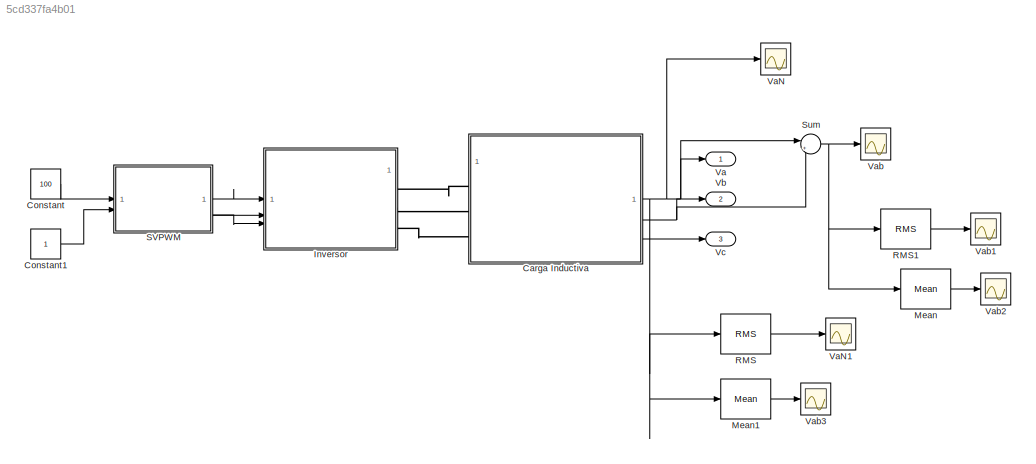
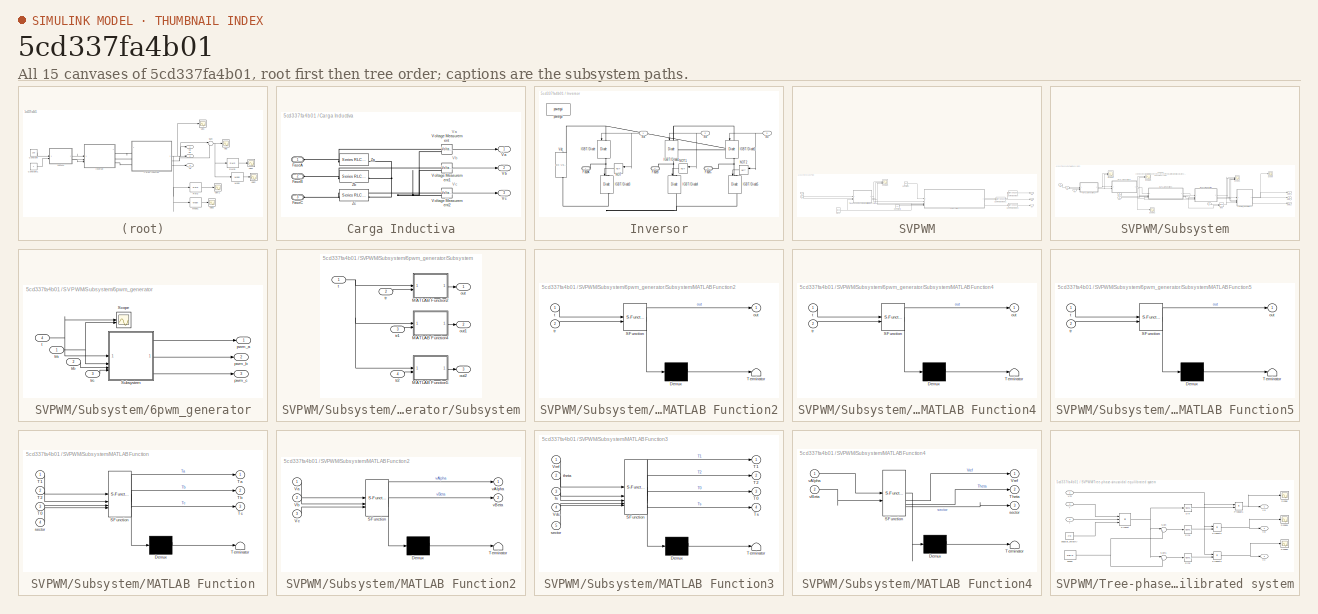
[diagram: thumbnail index - all 15 canvases of the model, root first then tree order]
MODEL slx_5cd337fa4b01
KIND model
CONFIG AbsTol = auto
CONFIG EnableMultiTasking = off
CONFIG FixedStep = auto
CONFIG MaxStep = 0.00001
CONFIG MinStep = auto
CONFIG RelTol = 1e-3
CONFIG SampleTimeConstraint = Unconstrained
CONFIG SolverName = VariableStepAuto
CONFIG StartTime = 0.0
CONFIG StopTime = 3
BLOCK [SubSystem] Carga Inductiva
BLOCK [PMIOPort] Carga Inductiva/FaseA
  Side = Left
BLOCK [PMIOPort] Carga Inductiva/FaseB
  Port = 2
  Side = Left
BLOCK [PMIOPort] Carga Inductiva/FaseC
  Port = 3
  Side = Left
BLOCK [Outport] Carga Inductiva/Va
BLOCK [Outport] Carga Inductiva/Vb
  Port = 2
BLOCK [Outport] Carga Inductiva/Vc
  Port = 3
BLOCK [Reference] Carga Inductiva/Voltage Measurement  REF=spsVoltageMeasurementLib/Voltage Measurement
  LibrarySourceBlock = sps_lib/Sensors and Measurements/Voltage Measurement
  SourceBlock = spsVoltageMeasurementLib/Voltage Measurement
  SourceType = Voltage Measurement
  UserDataPersistent = on
BLOCK [Reference] Carga Inductiva/Voltage Measurement1  REF=spsVoltageMeasurementLib/Voltage Measurement
  LibrarySourceBlock = sps_lib/Sensors and Measurements/Voltage Measurement
  SourceBlock = spsVoltageMeasurementLib/Voltage Measurement
  SourceType = Voltage Measurement
  UserDataPersistent = on
BLOCK [Reference] Carga Inductiva/Voltage Measurement2  REF=spsVoltageMeasurementLib/Voltage Measurement
  LibrarySourceBlock = sps_lib/Sensors and Measurements/Voltage Measurement
  SourceBlock = spsVoltageMeasurementLib/Voltage Measurement
  SourceType = Voltage Measurement
  UserDataPersistent = on
BLOCK [Reference] Carga Inductiva/Za  REF=spsSeriesRLCBranchLib/Series RLC Branch
  LibrarySourceBlock = sps_lib/Passives/Series RLC Branch
  SourceBlock = spsSeriesRLCBranchLib/Series RLC Branch
  SourceType = Series RLC Branch
BLOCK [Reference] Carga Inductiva/Zb  REF=spsSeriesRLCBranchLib/Series RLC Branch
  LibrarySourceBlock = sps_lib/Passives/Series RLC Branch
  SourceBlock = spsSeriesRLCBranchLib/Series RLC Branch
  SourceType = Series RLC Branch
BLOCK [Reference] Carga Inductiva/Zc  REF=spsSeriesRLCBranchLib/Series RLC Branch
  LibrarySourceBlock = sps_lib/Passives/Series RLC Branch
  SourceBlock = spsSeriesRLCBranchLib/Series RLC Branch
  SourceType = Series RLC Branch
BLOCK [Constant] Constant
  Value = 100
BLOCK [Constant] Constant1
BLOCK [SubSystem] Inversor
BLOCK [PMIOPort] Inversor/FaseA
  Side = Right
BLOCK [PMIOPort] Inversor/FaseB
  Port = 2
  Side = Right
BLOCK [PMIOPort] Inversor/FaseC
  Port = 3
  Side = Right
BLOCK [Reference] Inversor/IGBT//Diode  REF=spsIGBTDiodeLib/IGBT//Diode
  LibrarySourceBlock = sps_lib/Power Electronics/IGBT//Diode
  NameLocation = left
  SourceBlock = spsIGBTDiodeLib/IGBT//Diode
  SourceType = IGBT/Diode
BLOCK [Reference] Inversor/IGBT//Diode1  REF=spsIGBTDiodeLib/IGBT//Diode
  LibrarySourceBlock = sps_lib/Power Electronics/IGBT//Diode
  NameLocation = left
  SourceBlock = spsIGBTDiodeLib/IGBT//Diode
  SourceType = IGBT/Diode
BLOCK [Reference] Inversor/IGBT//Diode2  REF=spsIGBTDiodeLib/IGBT//Diode
  LibrarySourceBlock = sps_lib/Power Electronics/IGBT//Diode
  NameLocation = left
  SourceBlock = spsIGBTDiodeLib/IGBT//Diode
  SourceType = IGBT/Diode
BLOCK [Reference] Inversor/IGBT//Diode3  REF=spsIGBTDiodeLib/IGBT//Diode
  LibrarySourceBlock = sps_lib/Power Electronics/IGBT//Diode
  NameLocation = left
  SourceBlock = spsIGBTDiodeLib/IGBT//Diode
  SourceType = IGBT/Diode
BLOCK [Reference] Inversor/IGBT//Diode4  REF=spsIGBTDiodeLib/IGBT//Diode
  LibrarySourceBlock = sps_lib/Power Electronics/IGBT//Diode
  NameLocation = left
  SourceBlock = spsIGBTDiodeLib/IGBT//Diode
  SourceType = IGBT/Diode
BLOCK [Reference] Inversor/IGBT//Diode5  REF=spsIGBTDiodeLib/IGBT//Diode
  LibrarySourceBlock = sps_lib/Power Electronics/IGBT//Diode
  NameLocation = left
  SourceBlock = spsIGBTDiodeLib/IGBT//Diode
  SourceType = IGBT/Diode
BLOCK [Logic] Inversor/NOT
  AllPortsSameDT = off
  IconShape = distinctive
  NameLocation = top
  Operator = NOT
  OutDataTypeStr = boolean
BLOCK [Logic] Inversor/NOT1
  AllPortsSameDT = off
  IconShape = distinctive
  NameLocation = top
  Operator = NOT
  OutDataTypeStr = boolean
BLOCK [Logic] Inversor/NOT2
  AllPortsSameDT = off
  IconShape = distinctive
  NameLocation = top
  Operator = NOT
  OutDataTypeStr = boolean
BLOCK [Inport] Inversor/Sa
BLOCK [Inport] Inversor/Sb
  Port = 2
BLOCK [Inport] Inversor/Sc
  Port = 3
BLOCK [Reference] Inversor/Vdc  REF=spsDCVoltageSourceLib/DC Voltage Source
  LibrarySourceBlock = sps_lib/Sources/DC Voltage Source
  NameLocation = right
  SourceBlock = spsDCVoltageSourceLib/DC Voltage Source
  SourceType = DC Voltage Source
BLOCK [Reference] Inversor/powergui  REF=sps_lib/powergui
  Priority = 1
  SourceBlock = sps_lib/powergui
  SourceType = PSB option menu block
BLOCK [Reference] Mean  REF=spsMeanLib/Mean
  LibrarySourceBlock = sps_lib/Sensors and Measurements/Mean
  SourceBlock = spsMeanLib/Mean
  SourceType = Mean
BLOCK [Reference] Mean1  REF=spsMeanLib/Mean
  LibrarySourceBlock = sps_lib/Sensors and Measurements/Mean
  SourceBlock = spsMeanLib/Mean
  SourceType = Mean
BLOCK [Reference] RMS  REF=spsRMSLib/RMS
  LibrarySourceBlock = sps_lib/Sensors and Measurements/RMS
  SourceBlock = spsRMSLib/RMS
  SourceType = RMS
BLOCK [Reference] RMS1  REF=spsRMSLib/RMS
  LibrarySourceBlock = sps_lib/Sensors and Measurements/RMS
  SourceBlock = spsRMSLib/RMS
  SourceType = RMS
BLOCK [SubSystem] SVPWM
BLOCK [DataTypeConversion] SVPWM/Cast To Boolean
  OutDataTypeStr = boolean
  RndMeth = Floor
  SaturateOnIntegerOverflow = off
BLOCK [DataTypeConversion] SVPWM/Cast To Boolean1
  OutDataTypeStr = boolean
  RndMeth = Floor
  SaturateOnIntegerOverflow = off
BLOCK [DataTypeConversion] SVPWM/Cast To Boolean2
  OutDataTypeStr = boolean
  RndMeth = Floor
  SaturateOnIntegerOverflow = off
BLOCK [Clock] SVPWM/Clock
  DisplayTime = on
BLOCK [Constant] SVPWM/Constant
  Value = 200
BLOCK [Constant] SVPWM/Constant1
  Value = 100
BLOCK [Inport] SVPWM/F
  Port = 2
BLOCK [Outport] SVPWM/Sa
BLOCK [Outport] SVPWM/Sb
  Port = 2
BLOCK [Outport] SVPWM/Sc
  Port = 3
BLOCK [Scope] SVPWM/Scope2
  Floating = off
  NumInputPorts = 3
  ScopeSpecificationString = Simulink.scopes.TimeScopeBlockCfg('CurrentConfiguration', extmgr.ConfigurationSet(extmgr.Configuration('Core','General UI',true),extmgr.Configuration('Core','Source UI',true),extmgr.Configuration('Sources','WiredSimulink',true,'DataLoggingVariableName','ScopeData3'),extmgr.Configuration('Visuals','Time Domain',true,'SerializedDisplays',{struct('MinYLimReal','-243.51978','MaxYLimReal','236.01637','...<+1624ch>
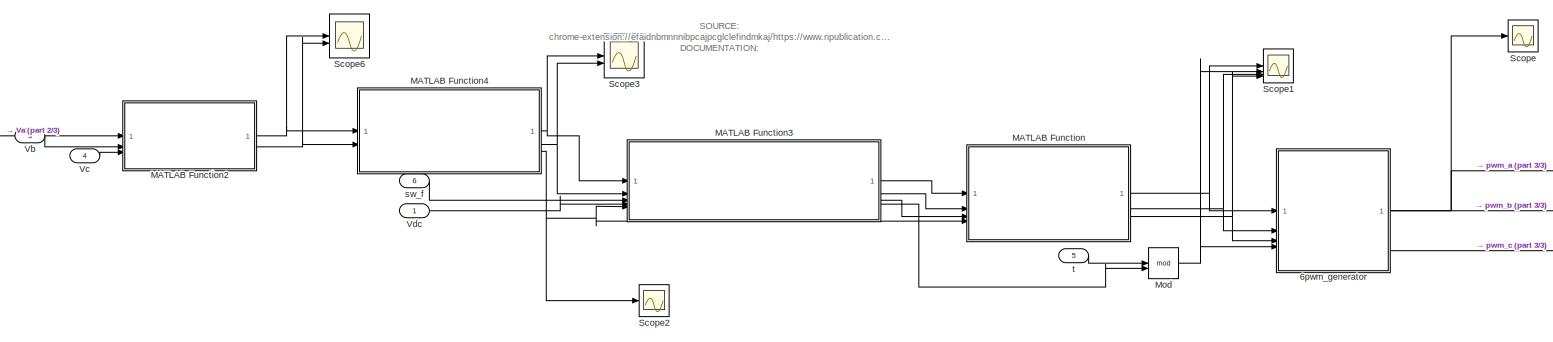
[diagram: SVPWM/Subsystem - part 1/3, most of the canvas]
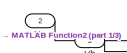
[diagram: SVPWM/Subsystem - part 2/3, middle left region]
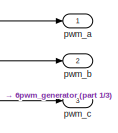
[diagram: SVPWM/Subsystem - part 3/3, middle right region]
BLOCK [SubSystem] SVPWM/Subsystem
BLOCK [SubSystem] SVPWM/Subsystem/6pwm_generator
BLOCK [Scope] SVPWM/Subsystem/6pwm_generator/Scope
  Floating = off
  NumInputPorts = 2
  ScopeSpecificationString = Simulink.scopes.TimeScopeBlockCfg('CurrentConfiguration', extmgr.ConfigurationSet(extmgr.Configuration('Core','General UI',true),extmgr.Configuration('Core','Source UI',true),extmgr.Configuration('Sources','WiredSimulink',true,'DataLoggingVariableName','ScopeData7'),extmgr.Configuration('Visuals','Time Domain',true,'SerializedDisplays',{struct('MinYLimReal','-0.00125','MaxYLimReal','0.01058','YLab...<+1439ch>
BLOCK [SubSystem] SVPWM/Subsystem/6pwm_generator/Subsystem
BLOCK [SubSystem] SVPWM/Subsystem/6pwm_generator/Subsystem/MATLAB Function2
  ErrorFcn = Stateflow.Translate.translate
  LibrarySourceBlock = simulink/User-Defined\nFunctions/MATLAB Function
  PermitHierarchicalResolution = ExplicitOnly
  SFBlockType = MATLAB Function
  TreatAsAtomicUnit = on
BLOCK [Demux] SVPWM/Subsystem/6pwm_generator/Subsystem/MATLAB Function2/ Demux 
  Outputs = 1
BLOCK [S-Function] SVPWM/Subsystem/6pwm_generator/Subsystem/MATLAB Function2/ SFunction 
  EnableBusSupport = on
  FunctionName = sf_sfun
  PortCounts = [2 2]
  SFcnIsStateOwnerBlock = off
  SFunctionDeploymentMode = off
  Tag = Stateflow S-Function 4
BLOCK [Terminator] SVPWM/Subsystem/6pwm_generator/Subsystem/MATLAB Function2/ Terminator 
BLOCK [Outport] SVPWM/Subsystem/6pwm_generator/Subsystem/MATLAB Function2/out
BLOCK [Inport] SVPWM/Subsystem/6pwm_generator/Subsystem/MATLAB Function2/t
BLOCK [Inport] SVPWM/Subsystem/6pwm_generator/Subsystem/MATLAB Function2/tr
  Port = 2
BLOCK [SubSystem] SVPWM/Subsystem/6pwm_generator/Subsystem/MATLAB Function4
  ErrorFcn = Stateflow.Translate.translate
  LibrarySourceBlock = simulink/User-Defined\nFunctions/MATLAB Function
  PermitHierarchicalResolution = ExplicitOnly
  SFBlockType = MATLAB Function
  TreatAsAtomicUnit = on
BLOCK [Demux] SVPWM/Subsystem/6pwm_generator/Subsystem/MATLAB Function4/ Demux 
  Outputs = 1
BLOCK [S-Function] SVPWM/Subsystem/6pwm_generator/Subsystem/MATLAB Function4/ SFunction 
  EnableBusSupport = on
  FunctionName = sf_sfun
  PortCounts = [2 2]
  SFcnIsStateOwnerBlock = off
  SFunctionDeploymentMode = off
  Tag = Stateflow S-Function 5
BLOCK [Terminator] SVPWM/Subsystem/6pwm_generator/Subsystem/MATLAB Function4/ Terminator 
BLOCK [Outport] SVPWM/Subsystem/6pwm_generator/Subsystem/MATLAB Function4/out
BLOCK [Inport] SVPWM/Subsystem/6pwm_generator/Subsystem/MATLAB Function4/t
BLOCK [Inport] SVPWM/Subsystem/6pwm_generator/Subsystem/MATLAB Function4/tr
  Port = 2
BLOCK [SubSystem] SVPWM/Subsystem/6pwm_generator/Subsystem/MATLAB Function5
  ErrorFcn = Stateflow.Translate.translate
  LibrarySourceBlock = simulink/User-Defined\nFunctions/MATLAB Function
  PermitHierarchicalResolution = ExplicitOnly
  SFBlockType = MATLAB Function
  TreatAsAtomicUnit = on
BLOCK [Demux] SVPWM/Subsystem/6pwm_generator/Subsystem/MATLAB Function5/ Demux 
  Outputs = 1
BLOCK [S-Function] SVPWM/Subsystem/6pwm_generator/Subsystem/MATLAB Function5/ SFunction 
  EnableBusSupport = on
  FunctionName = sf_sfun
  PortCounts = [2 2]
  SFcnIsStateOwnerBlock = off
  SFunctionDeploymentMode = off
  Tag = Stateflow S-Function 6
BLOCK [Terminator] SVPWM/Subsystem/6pwm_generator/Subsystem/MATLAB Function5/ Terminator 
BLOCK [Outport] SVPWM/Subsystem/6pwm_generator/Subsystem/MATLAB Function5/out
BLOCK [Inport] SVPWM/Subsystem/6pwm_generator/Subsystem/MATLAB Function5/t
BLOCK [Inport] SVPWM/Subsystem/6pwm_generator/Subsystem/MATLAB Function5/tr
  Port = 2
BLOCK [Outport] SVPWM/Subsystem/6pwm_generator/Subsystem/out
BLOCK [Outport] SVPWM/Subsystem/6pwm_generator/Subsystem/out1
  Port = 2
BLOCK [Outport] SVPWM/Subsystem/6pwm_generator/Subsystem/out2
  Port = 3
BLOCK [Inport] SVPWM/Subsystem/6pwm_generator/Subsystem/t
BLOCK [Inport] SVPWM/Subsystem/6pwm_generator/Subsystem/tr
  Port = 2
BLOCK [Inport] SVPWM/Subsystem/6pwm_generator/Subsystem/tr1
  Port = 3
BLOCK [Inport] SVPWM/Subsystem/6pwm_generator/Subsystem/tr2
  Port = 4
BLOCK [Outport] SVPWM/Subsystem/6pwm_generator/pwm_a
BLOCK [Outport] SVPWM/Subsystem/6pwm_generator/pwm_b
  Port = 2
BLOCK [Outport] SVPWM/Subsystem/6pwm_generator/pwm_c
  Port = 3
BLOCK [Inport] SVPWM/Subsystem/6pwm_generator/t
  Port = 4
BLOCK [Inport] SVPWM/Subsystem/6pwm_generator/tra
BLOCK [Inport] SVPWM/Subsystem/6pwm_generator/trb
  Port = 2
BLOCK [Inport] SVPWM/Subsystem/6pwm_generator/trc
  Port = 3
BLOCK [SubSystem] SVPWM/Subsystem/MATLAB Function
  ErrorFcn = Stateflow.Translate.translate
  LibrarySourceBlock = simulink/User-Defined\nFunctions/MATLAB Function
  PermitHierarchicalResolution = ExplicitOnly
  SFBlockType = MATLAB Function
  TreatAsAtomicUnit = on
BLOCK [Demux] SVPWM/Subsystem/MATLAB Function/ Demux 
  Outputs = 1
BLOCK [S-Function] SVPWM/Subsystem/MATLAB Function/ SFunction 
  EnableBusSupport = on
  FunctionName = sf_sfun
  PortCounts = [4 4]
  SFcnIsStateOwnerBlock = off
  SFunctionDeploymentMode = off
  Tag = Stateflow S-Function 1
BLOCK [Terminator] SVPWM/Subsystem/MATLAB Function/ Terminator 
BLOCK [Inport] SVPWM/Subsystem/MATLAB Function/T0
  Port = 3
BLOCK [Inport] SVPWM/Subsystem/MATLAB Function/T1
BLOCK [Inport] SVPWM/Subsystem/MATLAB Function/T2
  Port = 2
BLOCK [Outport] SVPWM/Subsystem/MATLAB Function/Ta
BLOCK [Outport] SVPWM/Subsystem/MATLAB Function/Tb
  Port = 2
BLOCK [Outport] SVPWM/Subsystem/MATLAB Function/Tc
  Port = 3
BLOCK [Inport] SVPWM/Subsystem/MATLAB Function/sector
  Port = 4
BLOCK [SubSystem] SVPWM/Subsystem/MATLAB Function2
  ErrorFcn = Stateflow.Translate.translate
  LibrarySourceBlock = simulink/User-Defined\nFunctions/MATLAB Function
  PermitHierarchicalResolution = ExplicitOnly
  SFBlockType = MATLAB Function
  TreatAsAtomicUnit = on
BLOCK [Demux] SVPWM/Subsystem/MATLAB Function2/ Demux 
  Outputs = 1
BLOCK [S-Function] SVPWM/Subsystem/MATLAB Function2/ SFunction 
  EnableBusSupport = on
  FunctionName = sf_sfun
  PortCounts = [3 3]
  SFcnIsStateOwnerBlock = off
  SFunctionDeploymentMode = off
  Tag = Stateflow S-Function 7
BLOCK [Terminator] SVPWM/Subsystem/MATLAB Function2/ Terminator 
BLOCK [Inport] SVPWM/Subsystem/MATLAB Function2/Va
BLOCK [Inport] SVPWM/Subsystem/MATLAB Function2/Vb
  Port = 2
BLOCK [Inport] SVPWM/Subsystem/MATLAB Function2/Vc
  Port = 3
BLOCK [Outport] SVPWM/Subsystem/MATLAB Function2/vAlpha
BLOCK [Outport] SVPWM/Subsystem/MATLAB Function2/vBeta
  Port = 2
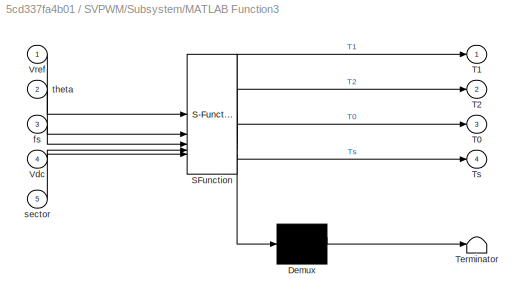
BLOCK [SubSystem] SVPWM/Subsystem/MATLAB Function3
  ErrorFcn = Stateflow.Translate.translate
  LibrarySourceBlock = simulink/User-Defined\nFunctions/MATLAB Function
  PermitHierarchicalResolution = ExplicitOnly
  SFBlockType = MATLAB Function
  TreatAsAtomicUnit = on
BLOCK [Demux] SVPWM/Subsystem/MATLAB Function3/ Demux 
  Outputs = 1
BLOCK [S-Function] SVPWM/Subsystem/MATLAB Function3/ SFunction 
  EnableBusSupport = on
  FunctionName = sf_sfun
  PortCounts = [5 5]
  SFcnIsStateOwnerBlock = off
  SFunctionDeploymentMode = off
  Tag = Stateflow S-Function 3
BLOCK [Terminator] SVPWM/Subsystem/MATLAB Function3/ Terminator 
BLOCK [Outport] SVPWM/Subsystem/MATLAB Function3/T0
  Port = 3
BLOCK [Outport] SVPWM/Subsystem/MATLAB Function3/T1
BLOCK [Outport] SVPWM/Subsystem/MATLAB Function3/T2
  Port = 2
BLOCK [Outport] SVPWM/Subsystem/MATLAB Function3/Ts
  Port = 4
BLOCK [Inport] SVPWM/Subsystem/MATLAB Function3/Vdc
  Port = 4
BLOCK [Inport] SVPWM/Subsystem/MATLAB Function3/Vref
BLOCK [Inport] SVPWM/Subsystem/MATLAB Function3/fs
  Port = 3
BLOCK [Inport] SVPWM/Subsystem/MATLAB Function3/sector
  Port = 5
BLOCK [Inport] SVPWM/Subsystem/MATLAB Function3/theta
  Port = 2
BLOCK [SubSystem] SVPWM/Subsystem/MATLAB Function4
  ErrorFcn = Stateflow.Translate.translate
  LibrarySourceBlock = simulink/User-Defined\nFunctions/MATLAB Function
  PermitHierarchicalResolution = ExplicitOnly
  SFBlockType = MATLAB Function
  TreatAsAtomicUnit = on
BLOCK [Demux] SVPWM/Subsystem/MATLAB Function4/ Demux 
  Outputs = 1
BLOCK [S-Function] SVPWM/Subsystem/MATLAB Function4/ SFunction 
  EnableBusSupport = on
  FunctionName = sf_sfun
  PortCounts = [2 4]
  SFcnIsStateOwnerBlock = off
  SFunctionDeploymentMode = off
  Tag = Stateflow S-Function 8
BLOCK [Terminator] SVPWM/Subsystem/MATLAB Function4/ Terminator 
BLOCK [Outport] SVPWM/Subsystem/MATLAB Function4/Theta
  Port = 2
BLOCK [Outport] SVPWM/Subsystem/MATLAB Function4/Vref
BLOCK [Outport] SVPWM/Subsystem/MATLAB Function4/sector
  Port = 3
BLOCK [Inport] SVPWM/Subsystem/MATLAB Function4/vAlpha
BLOCK [Inport] SVPWM/Subsystem/MATLAB Function4/vBeta
  Port = 2
BLOCK [Math] SVPWM/Subsystem/Mod
  Operator = mod
BLOCK [Scope] SVPWM/Subsystem/Scope
  Floating = off
  NumInputPorts = 1
  ScopeSpecificationString = Simulink.scopes.TimeScopeBlockCfg('CurrentConfiguration', extmgr.ConfigurationSet(extmgr.Configuration('Core','General UI',true),extmgr.Configuration('Core','Source UI',true),extmgr.Configuration('Sources','WiredSimulink',true,'DataLoggingVariableName','ScopeData1'),extmgr.Configuration('Visuals','Time Domain',true,'SerializedDisplays',{struct('MinYLimReal','-0.125','MaxYLimReal','1.125','YLabelRe...<+1441ch>
BLOCK [Scope] SVPWM/Subsystem/Scope1
  Floating = off
  NumInputPorts = 4
  ScopeSpecificationString = Simulink.scopes.TimeScopeBlockCfg('CurrentConfiguration', extmgr.ConfigurationSet(extmgr.Configuration('Core','General UI',true),extmgr.Configuration('Core','Source UI',true),extmgr.Configuration('Sources','WiredSimulink',true,'DataLoggingVariableName','ScopeData5'),extmgr.Configuration('Visuals','Time Domain',true,'SerializedDisplays',{struct('MinYLimReal','-0.00125','MaxYLimReal','0.0103','YLabe...<+1583ch>
BLOCK [Scope] SVPWM/Subsystem/Scope2
  Floating = off
  NumInputPorts = 1
  ScopeSpecificationString = Simulink.scopes.TimeScopeBlockCfg('CurrentConfiguration', extmgr.ConfigurationSet(extmgr.Configuration('Core','General UI',true),extmgr.Configuration('Core','Source UI',true),extmgr.Configuration('Sources','WiredSimulink',true,'DataLoggingVariableName','ScopeData6'),extmgr.Configuration('Visuals','Time Domain',true,'SerializedDisplays',{struct('MinYLimReal','0.375','MaxYLimReal','6.625','YLabelRea...<+1393ch>
BLOCK [Scope] SVPWM/Subsystem/Scope3
  Floating = off
  NumInputPorts = 2
  ScopeSpecificationString = Simulink.scopes.TimeScopeBlockCfg('CurrentConfiguration', extmgr.ConfigurationSet(extmgr.Configuration('Core','General UI',true),extmgr.Configuration('Core','Source UI',true),extmgr.Configuration('Sources','WiredSimulink',true,'DataLoggingVariableName','ScopeData1'),extmgr.Configuration('Visuals','Time Domain',true,'SerializedDisplays',{struct('MinYLimReal','-14.43787','MaxYLimReal','8.41888','YLa...<+1472ch>
BLOCK [Scope] SVPWM/Subsystem/Scope6
  Floating = off
  NumInputPorts = 2
  ScopeSpecificationString = Simulink.scopes.TimeScopeBlockCfg('CurrentConfiguration', extmgr.ConfigurationSet(extmgr.Configuration('Core','General UI',true),extmgr.Configuration('Core','Source UI',true),extmgr.Configuration('Sources','WiredSimulink',true,'DataLoggingVariableName','ScopeData6'),extmgr.Configuration('Visuals','Time Domain',true,'SerializedDisplays',{struct('MinYLimReal','-125.00000','MaxYLimReal','125.00000','...<+1421ch>
BLOCK [Inport] SVPWM/Subsystem/Va
  Port = 2
BLOCK [Inport] SVPWM/Subsystem/Vb
  Port = 3
BLOCK [Inport] SVPWM/Subsystem/Vc
  Port = 4
BLOCK [Inport] SVPWM/Subsystem/Vdc
BLOCK [Outport] SVPWM/Subsystem/pwm_a
BLOCK [Outport] SVPWM/Subsystem/pwm_b
  Port = 2
BLOCK [Outport] SVPWM/Subsystem/pwm_c
  Port = 3
BLOCK [Inport] SVPWM/Subsystem/sw_f
  Port = 6
BLOCK [Inport] SVPWM/Subsystem/t
  Port = 5
BLOCK [SubSystem] SVPWM/Tree-phase-sinusoidal equilibrated system
BLOCK [Product] SVPWM/Tree-phase-sinusoidal equilibrated system/Product
  Inputs = 3
BLOCK [Product] SVPWM/Tree-phase-sinusoidal equilibrated system/Product1
BLOCK [Product] SVPWM/Tree-phase-sinusoidal equilibrated system/Product2
BLOCK [Product] SVPWM/Tree-phase-sinusoidal equilibrated system/Product3
BLOCK [Scope] SVPWM/Tree-phase-sinusoidal equilibrated system/Scope
  Floating = off
  NumInputPorts = 1
  ScopeSpecificationString = Simulink.scopes.TimeScopeBlockCfg('CurrentConfiguration', extmgr.ConfigurationSet(extmgr.Configuration('Core','General UI',true),extmgr.Configuration('Core','Source UI',true),extmgr.Configuration('Sources','WiredSimulink',true,'DataLoggingVariableName','ScopeData3'),extmgr.Configuration('Visuals','Time Domain',true,'SerializedDisplays',{struct('MinYLimReal','-250.00000','MaxYLimReal','250.00000','...<+1400ch>
BLOCK [Scope] SVPWM/Tree-phase-sinusoidal equilibrated system/Scope1
  Floating = off
  NumInputPorts = 1
  ScopeSpecificationString = Simulink.scopes.TimeScopeBlockCfg('CurrentConfiguration', extmgr.ConfigurationSet(extmgr.Configuration('Core','General UI',true),extmgr.Configuration('Core','Source UI',true),extmgr.Configuration('Sources','WiredSimulink',true),extmgr.Configuration('Visuals','Time Domain',true),extmgr.Configuration('Tools','Plot Navigation',true),extmgr.Configuration('Tools','Measurements',true)),'Version','2021b'...<+1ch>
BLOCK [Scope] SVPWM/Tree-phase-sinusoidal equilibrated system/Scope2
  Floating = off
  NumInputPorts = 1
  ScopeSpecificationString = Simulink.scopes.TimeScopeBlockCfg('CurrentConfiguration', extmgr.ConfigurationSet(extmgr.Configuration('Core','General UI',true),extmgr.Configuration('Core','Source UI',true),extmgr.Configuration('Sources','WiredSimulink',true,'DataLoggingVariableName','ScopeData1'),extmgr.Configuration('Visuals','Time Domain',true),extmgr.Configuration('Tools','Plot Navigation',true),extmgr.Configuration('Tools',...<+40ch>
BLOCK [Trigonometry] SVPWM/Tree-phase-sinusoidal equilibrated system/Sin
BLOCK [Trigonometry] SVPWM/Tree-phase-sinusoidal equilibrated system/Sin1
BLOCK [Trigonometry] SVPWM/Tree-phase-sinusoidal equilibrated system/Sin2
BLOCK [Sum] SVPWM/Tree-phase-sinusoidal equilibrated system/Sum
  Inputs = |++
BLOCK [Sum] SVPWM/Tree-phase-sinusoidal equilibrated system/Sum1
  Inputs = |+-
BLOCK [Outport] SVPWM/Tree-phase-sinusoidal equilibrated system/Va
BLOCK [Outport] SVPWM/Tree-phase-sinusoidal equilibrated system/Vb
  Port = 2
BLOCK [Outport] SVPWM/Tree-phase-sinusoidal equilibrated system/Vc
  Port = 3
BLOCK [Inport] SVPWM/Tree-phase-sinusoidal equilibrated system/Vm
BLOCK [Constant] SVPWM/Tree-phase-sinusoidal equilibrated system/angular_velocity
  Value = 2*pi
BLOCK [Inport] SVPWM/Tree-phase-sinusoidal equilibrated system/f
  Port = 2
BLOCK [Constant] SVPWM/Tree-phase-sinusoidal equilibrated system/phase
  Value = 2*pi/3
BLOCK [Inport] SVPWM/Tree-phase-sinusoidal equilibrated system/t
  Port = 3
BLOCK [Inport] SVPWM/V
BLOCK [Sum] Sum
  Inputs = |+-
BLOCK [Outport] Va
BLOCK [Scope] VaN
  Floating = off
  NumInputPorts = 1
  ScopeSpecificationString = Simulink.scopes.TimeScopeBlockCfg('CurrentConfiguration', extmgr.ConfigurationSet(extmgr.Configuration('Core','General UI',true),extmgr.Configuration('Core','Source UI',true),extmgr.Configuration('Sources','WiredSimulink',true,'DataLoggingVariableName','ScopeData1'),extmgr.Configuration('Visuals','Time Domain',true,'SerializedDisplays',{struct('MinYLimReal','-168.19324','MaxYLimReal','166.84626','...<+1421ch>
BLOCK [Scope] VaN1
  Floating = off
  NumInputPorts = 1
  ScopeSpecificationString = Simulink.scopes.TimeScopeBlockCfg('CurrentConfiguration', extmgr.ConfigurationSet(extmgr.Configuration('Core','General UI',true),extmgr.Configuration('Core','Source UI',true),extmgr.Configuration('Sources','WiredSimulink',true,'DataLoggingVariableName','ScopeData3'),extmgr.Configuration('Visuals','Time Domain',true,'SerializedDisplays',{struct('MinYLimReal','46.7131','MaxYLimReal','132.05624','YLa...<+1399ch>
BLOCK [Scope] Vab
  Floating = off
  NumInputPorts = 1
  ScopeSpecificationString = Simulink.scopes.TimeScopeBlockCfg('CurrentConfiguration', extmgr.ConfigurationSet(extmgr.Configuration('Core','General UI',true),extmgr.Configuration('Core','Source UI',true),extmgr.Configuration('Sources','WiredSimulink',true,'DataLoggingVariableName','ScopeData2'),extmgr.Configuration('Visuals','Time Domain',true,'SerializedDisplays',{struct('MinYLimReal','-252.74998','MaxYLimReal','250.71082','...<+1434ch>
BLOCK [Scope] Vab1
  Floating = off
  NumInputPorts = 1
  ScopeSpecificationString = Simulink.scopes.TimeScopeBlockCfg('CurrentConfiguration', extmgr.ConfigurationSet(extmgr.Configuration('Core','General UI',true),extmgr.Configuration('Core','Source UI',true),extmgr.Configuration('Sources','WiredSimulink',true,'DataLoggingVariableName','ScopeData4'),extmgr.Configuration('Visuals','Time Domain',true,'SerializedDisplays',{struct('MinYLimReal','-5.85751','MaxYLimReal','214.90866','YL...<+1429ch>
BLOCK [Scope] Vab2
  Floating = off
  NumInputPorts = 1
  ScopeSpecificationString = Simulink.scopes.TimeScopeBlockCfg('CurrentConfiguration', extmgr.ConfigurationSet(extmgr.Configuration('Core','General UI',true),extmgr.Configuration('Core','Source UI',true),extmgr.Configuration('Sources','WiredSimulink',true,'DataLoggingVariableName','ScopeData5'),extmgr.Configuration('Visuals','Time Domain',true,'SerializedDisplays',{struct('MinYLimReal','-230.99481','MaxYLimReal','228.90877','...<+1435ch>
BLOCK [Scope] Vab3
  Floating = off
  NumInputPorts = 1
  ScopeSpecificationString = Simulink.scopes.TimeScopeBlockCfg('CurrentConfiguration', extmgr.ConfigurationSet(extmgr.Configuration('Core','General UI',true),extmgr.Configuration('Core','Source UI',true),extmgr.Configuration('Sources','WiredSimulink',true,'DataLoggingVariableName','ScopeData6'),extmgr.Configuration('Visuals','Time Domain',true,'SerializedDisplays',{struct('MinYLimReal','-142.58463','MaxYLimReal','141.38819','...<+1436ch>
BLOCK [Outport] Vb
  Port = 2
BLOCK [Outport] Vc
  Port = 3
ANNOTATION Carga Inductiva: Va
ANNOTATION Carga Inductiva: Vb
ANNOTATION Carga Inductiva: Vc
ANNOTATION SVPWM/Subsystem: SOURCE: chrome-extension://efaidnbmnnnibpcajpcglclefindmkaj/https://www.ripublication.com/ijaer18/ijaerv13n1_78.pdf DOCUMENTATION:
LINE Carga Inductiva/Voltage Measurement1:1 -> Carga Inductiva/Vb:1
LINE Carga Inductiva/Voltage Measurement2:1 -> Carga Inductiva/Vc:1
LINE Carga Inductiva/Voltage Measurement:1 -> Carga Inductiva/Va:1
NET Carga Inductiva:1 -> Mean1:1, RMS:1, Sum:1, Va:1, VaN:1
NET Carga Inductiva:2 -> Sum:2, Vb:1
LINE Carga Inductiva:3 -> Vc:1
LINE Constant1:1 -> SVPWM:2
LINE Constant:1 -> SVPWM:1
LINE Inversor/NOT1:1 -> Inversor/IGBT//Diode4:1
LINE Inversor/NOT2:1 -> Inversor/IGBT//Diode5:1
LINE Inversor/NOT:1 -> Inversor/IGBT//Diode3:1
NET Inversor/Sa:1 -> Inversor/IGBT//Diode:1, Inversor/NOT:1
NET Inversor/Sb:1 -> Inversor/IGBT//Diode1:1, Inversor/NOT1:1
NET Inversor/Sc:1 -> Inversor/IGBT//Diode2:1, Inversor/NOT2:1
LINE Mean1:1 -> Vab3:1
LINE Mean:1 -> Vab2:1
LINE RMS1:1 -> Vab1:1
LINE RMS:1 -> VaN1:1
LINE SVPWM/Cast To Boolean1:1 -> SVPWM/Sb:1
LINE SVPWM/Cast To Boolean2:1 -> SVPWM/Sc:1
LINE SVPWM/Cast To Boolean:1 -> SVPWM/Sa:1
NET SVPWM/Clock:1 -> SVPWM/Subsystem:5, SVPWM/Tree-phase-sinusoidal equilibrated system:3
LINE SVPWM/Constant1:1 -> SVPWM/Subsystem:6
LINE SVPWM/Constant:1 -> SVPWM/Subsystem:1
LINE SVPWM/F:1 -> SVPWM/Tree-phase-sinusoidal equilibrated system:2
LINE SVPWM/Subsystem/6pwm_generator/Subsystem/MATLAB Function2:1 -> SVPWM/Subsystem/6pwm_generator/Subsystem/out:1
LINE SVPWM/Subsystem/6pwm_generator/Subsystem/MATLAB Function4:1 -> SVPWM/Subsystem/6pwm_generator/Subsystem/out1:1
LINE SVPWM/Subsystem/6pwm_generator/Subsystem/MATLAB Function5:1 -> SVPWM/Subsystem/6pwm_generator/Subsystem/out2:1
NET SVPWM/Subsystem/6pwm_generator/Subsystem/t:1 -> SVPWM/Subsystem/6pwm_generator/Subsystem/MATLAB Function2:1, SVPWM/Subsystem/6pwm_generator/Subsystem/MATLAB Function4:1, SVPWM/Subsystem/6pwm_generator/Subsystem/MATLAB Function5:1
LINE SVPWM/Subsystem/6pwm_generator/Subsystem/tr1:1 -> SVPWM/Subsystem/6pwm_generator/Subsystem/MATLAB Function4:2
LINE SVPWM/Subsystem/6pwm_generator/Subsystem/tr2:1 -> SVPWM/Subsystem/6pwm_generator/Subsystem/MATLAB Function5:2
LINE SVPWM/Subsystem/6pwm_generator/Subsystem/tr:1 -> SVPWM/Subsystem/6pwm_generator/Subsystem/MATLAB Function2:2
LINE SVPWM/Subsystem/6pwm_generator/Subsystem:1 -> SVPWM/Subsystem/6pwm_generator/pwm_a:1
LINE SVPWM/Subsystem/6pwm_generator/Subsystem:2 -> SVPWM/Subsystem/6pwm_generator/pwm_b:1
LINE SVPWM/Subsystem/6pwm_generator/Subsystem:3 -> SVPWM/Subsystem/6pwm_generator/pwm_c:1
NET SVPWM/Subsystem/6pwm_generator/t:1 -> SVPWM/Subsystem/6pwm_generator/Scope:1, SVPWM/Subsystem/6pwm_generator/Subsystem:1
NET SVPWM/Subsystem/6pwm_generator/tra:1 -> SVPWM/Subsystem/6pwm_generator/Scope:2, SVPWM/Subsystem/6pwm_generator/Subsystem:2
LINE SVPWM/Subsystem/6pwm_generator/trb:1 -> SVPWM/Subsystem/6pwm_generator/Subsystem:3
LINE SVPWM/Subsystem/6pwm_generator/trc:1 -> SVPWM/Subsystem/6pwm_generator/Subsystem:4
NET SVPWM/Subsystem/6pwm_generator:1 -> SVPWM/Subsystem/Scope:1, SVPWM/Subsystem/pwm_a:1
LINE SVPWM/Subsystem/6pwm_generator:2 -> SVPWM/Subsystem/pwm_b:1
LINE SVPWM/Subsystem/6pwm_generator:3 -> SVPWM/Subsystem/pwm_c:1
NET SVPWM/Subsystem/MATLAB Function2:1 -> SVPWM/Subsystem/MATLAB Function4:1, SVPWM/Subsystem/Scope6:1
NET SVPWM/Subsystem/MATLAB Function2:2 -> SVPWM/Subsystem/MATLAB Function4:2, SVPWM/Subsystem/Scope6:2
LINE SVPWM/Subsystem/MATLAB Function3:1 -> SVPWM/Subsystem/MATLAB Function:1
LINE SVPWM/Subsystem/MATLAB Function3:2 -> SVPWM/Subsystem/MATLAB Function:2
LINE SVPWM/Subsystem/MATLAB Function3:3 -> SVPWM/Subsystem/MATLAB Function:3
LINE SVPWM/Subsystem/MATLAB Function3:4 -> SVPWM/Subsystem/Mod:2
NET SVPWM/Subsystem/MATLAB Function4:1 -> SVPWM/Subsystem/MATLAB Function3:1, SVPWM/Subsystem/Scope3:1
NET SVPWM/Subsystem/MATLAB Function4:2 -> SVPWM/Subsystem/MATLAB Function3:2, SVPWM/Subsystem/Scope3:2
NET SVPWM/Subsystem/MATLAB Function4:3 -> SVPWM/Subsystem/MATLAB Function3:5, SVPWM/Subsystem/MATLAB Function:4, SVPWM/Subsystem/Scope2:1
NET SVPWM/Subsystem/MATLAB Function:1 -> SVPWM/Subsystem/6pwm_generator:1, SVPWM/Subsystem/Scope1:1
NET SVPWM/Subsystem/MATLAB Function:2 -> SVPWM/Subsystem/6pwm_generator:2, SVPWM/Subsystem/Scope1:3
NET SVPWM/Subsystem/MATLAB Function:3 -> SVPWM/Subsystem/6pwm_generator:3, SVPWM/Subsystem/Scope1:4
NET SVPWM/Subsystem/Mod:1 -> SVPWM/Subsystem/6pwm_generator:4, SVPWM/Subsystem/Scope1:2
LINE SVPWM/Subsystem/Va:1 -> SVPWM/Subsystem/MATLAB Function2:1
LINE SVPWM/Subsystem/Vb:1 -> SVPWM/Subsystem/MATLAB Function2:2
LINE SVPWM/Subsystem/Vc:1 -> SVPWM/Subsystem/MATLAB Function2:3
LINE SVPWM/Subsystem/Vdc:1 -> SVPWM/Subsystem/MATLAB Function3:4
LINE SVPWM/Subsystem/sw_f:1 -> SVPWM/Subsystem/MATLAB Function3:3
LINE SVPWM/Subsystem/t:1 -> SVPWM/Subsystem/Mod:1
LINE SVPWM/Subsystem:1 -> SVPWM/Cast To Boolean:1
LINE SVPWM/Subsystem:2 -> SVPWM/Cast To Boolean1:1
LINE SVPWM/Subsystem:3 -> SVPWM/Cast To Boolean2:1
NET SVPWM/Tree-phase-sinusoidal equilibrated system/Product1:1 -> SVPWM/Tree-phase-sinusoidal equilibrated system/Scope:1, SVPWM/Tree-phase-sinusoidal equilibrated system/Va:1
NET SVPWM/Tree-phase-sinusoidal equilibrated system/Product2:1 -> SVPWM/Tree-phase-sinusoidal equilibrated system/Scope1:1, SVPWM/Tree-phase-sinusoidal equilibrated system/Vb:1
NET SVPWM/Tree-phase-sinusoidal equilibrated system/Product3:1 -> SVPWM/Tree-phase-sinusoidal equilibrated system/Scope2:1, SVPWM/Tree-phase-sinusoidal equilibrated system/Vc:1
NET SVPWM/Tree-phase-sinusoidal equilibrated system/Product:1 -> SVPWM/Tree-phase-sinusoidal equilibrated system/Sin:1, SVPWM/Tree-phase-sinusoidal equilibrated system/Sum1:1, SVPWM/Tree-phase-sinusoidal equilibrated system/Sum:1
LINE SVPWM/Tree-phase-sinusoidal equilibrated system/Sin1:1 -> SVPWM/Tree-phase-sinusoidal equilibrated system/Product2:2
LINE SVPWM/Tree-phase-sinusoidal equilibrated system/Sin2:1 -> SVPWM/Tree-phase-sinusoidal equilibrated system/Product3:2
LINE SVPWM/Tree-phase-sinusoidal equilibrated system/Sin:1 -> SVPWM/Tree-phase-sinusoidal equilibrated system/Product1:2
LINE SVPWM/Tree-phase-sinusoidal equilibrated system/Sum1:1 -> SVPWM/Tree-phase-sinusoidal equilibrated system/Sin2:1
LINE SVPWM/Tree-phase-sinusoidal equilibrated system/Sum:1 -> SVPWM/Tree-phase-sinusoidal equilibrated system/Sin1:1
NET SVPWM/Tree-phase-sinusoidal equilibrated system/Vm:1 -> SVPWM/Tree-phase-sinusoidal equilibrated system/Product1:1, SVPWM/Tree-phase-sinusoidal equilibrated system/Product2:1, SVPWM/Tree-phase-sinusoidal equilibrated system/Product3:1
LINE SVPWM/Tree-phase-sinusoidal equilibrated system/angular_velocity:1 -> SVPWM/Tree-phase-sinusoidal equilibrated system/Product:3
LINE SVPWM/Tree-phase-sinusoidal equilibrated system/f:1 -> SVPWM/Tree-phase-sinusoidal equilibrated system/Product:1
NET SVPWM/Tree-phase-sinusoidal equilibrated system/phase:1 -> SVPWM/Tree-phase-sinusoidal equilibrated system/Sum1:2, SVPWM/Tree-phase-sinusoidal equilibrated system/Sum:2
LINE SVPWM/Tree-phase-sinusoidal equilibrated system/t:1 -> SVPWM/Tree-phase-sinusoidal equilibrated system/Product:2
NET SVPWM/Tree-phase-sinusoidal equilibrated system:1 -> SVPWM/Scope2:1, SVPWM/Subsystem:2
NET SVPWM/Tree-phase-sinusoidal equilibrated system:2 -> SVPWM/Scope2:2, SVPWM/Subsystem:3
NET SVPWM/Tree-phase-sinusoidal equilibrated system:3 -> SVPWM/Scope2:3, SVPWM/Subsystem:4
LINE SVPWM/V:1 -> SVPWM/Tree-phase-sinusoidal equilibrated system:1
LINE SVPWM:1 -> Inversor:1
LINE SVPWM:2 -> Inversor:2
LINE SVPWM:3 -> Inversor:3
NET Sum:1 -> Mean:1, RMS1:1, Vab:1
PNET net1: Carga Inductiva/FaseA:RConn1 -- Carga Inductiva/Voltage Measurement:LConn1 -- Carga Inductiva/Za:LConn1
PNET net2: Carga Inductiva/FaseB:RConn1 -- Carga Inductiva/Voltage Measurement1:LConn1 -- Carga Inductiva/Zb:LConn1
PNET net3: Carga Inductiva/FaseC:RConn1 -- Carga Inductiva/Voltage Measurement2:LConn1 -- Carga Inductiva/Zc:LConn1
PNET net4: Carga Inductiva/Voltage Measurement1:LConn2 -- Carga Inductiva/Voltage Measurement2:LConn2 -- Carga Inductiva/Voltage Measurement:LConn2 -- Carga Inductiva/Za:RConn1 -- Carga Inductiva/Zb:RConn1 -- Carga Inductiva/Zc:RConn1
PLINE Carga Inductiva:LConn1 -- Inversor:RConn1
PLINE Carga Inductiva:LConn2 -- Inversor:RConn2
PLINE Carga Inductiva:LConn3 -- Inversor:RConn3
PNET net5: Inversor/FaseA:RConn1 -- Inversor/IGBT//Diode3:LConn1 -- Inversor/IGBT//Diode:RConn1
PNET net6: Inversor/FaseB:RConn1 -- Inversor/IGBT//Diode1:RConn1 -- Inversor/IGBT//Diode4:LConn1
PNET net7: Inversor/FaseC:RConn1 -- Inversor/IGBT//Diode2:RConn1 -- Inversor/IGBT//Diode5:LConn1
PNET net8: Inversor/IGBT//Diode1:LConn1 -- Inversor/IGBT//Diode2:LConn1 -- Inversor/IGBT//Diode:LConn1 -- Inversor/Vdc:RConn1
PNET net9: Inversor/IGBT//Diode3:RConn1 -- Inversor/IGBT//Diode4:RConn1 -- Inversor/IGBT//Diode5:RConn1 -- Inversor/Vdc:LConn1
note: NET lines group one-source signal fan-out (src -> all destinations, sorted); 1:1 wires keep LINE; PNET lines group multi-terminal physical nets as a canonical sorted terminal list (undirected conserving connections); 2-terminal nets keep the pairwise PLINE form
CHART SVPWM/Subsystem/MATLAB Function states=1 transitions=1
  STATE_LABEL 'eML_blk_kernel()'
  STATE_LABEL 'SCRIPT:\nfunction [Ta, Tb, Tc] = switches(T1, T2, T0, sector)\nswitch sector\n    case 1\n        Ta = T1 + T2 + T0/2;\n        Tb = T2 + T0/2;\n        Tc = T0/2;\n    case 2\n        Ta = T1 + T0/2;\n        Tb = T1 + T2 + T0/2;\n        Tc = T0/2;\n    case 3\n        Ta = T0/2;\n        Tb = T1 + T2 + T0/2;\n        Tc = T2 + T0/2;\n    case 4\n        Ta = T0/2;\n        Tb = T1 + T0/2;\n        Tc = T1 + T2 +...<+239ch>'
CHART SVPWM/Subsystem/MATLAB Function3 states=1 transitions=1
  STATE_LABEL 'eML_blk_kernel()'
  STATE_LABEL 'SCRIPT:\nfunction [T1, T2, T0,Ts] = times(Vref, theta, fs, Vdc, sector)\n\nTs = 1/fs;\n\nT1 = (sqrt(3)*Ts*abs(Vref))/Vdc * sin((sector/3)*pi-theta);\nT2 = (sqrt(3)*Ts*abs(Vref))/Vdc * sin(theta - ((sector-1)/3)*pi);\n\n\nT0 = Ts - (T1 + T2);'
CHART SVPWM/Subsystem/6pwm_generator/Subsystem/MATLAB Function2 states=1 transitions=1
  STATE_LABEL 'eML_blk_kernel()'
  STATE_LABEL 'SCRIPT:\nfunction out = pwm(t,tr)\nif t>=tr\n    out = 0;\nelse \n    out = 1;\nend\n'
CHART SVPWM/Subsystem/6pwm_generator/Subsystem/MATLAB Function4 states=1 transitions=1
  STATE_LABEL 'eML_blk_kernel()'
  STATE_LABEL 'SCRIPT:\nfunction out = pwm(t,tr)\nif t>=tr\n    out = 0;\nelse \n    out = 1;\nend\n'
CHART SVPWM/Subsystem/6pwm_generator/Subsystem/MATLAB Function5 states=1 transitions=1
  STATE_LABEL 'eML_blk_kernel()'
  STATE_LABEL 'SCRIPT:\nfunction out = pwm(t,tr)\nif t>=tr\n    out = 0;\nelse \n    out = 1;\nend\n'
CHART SVPWM/Subsystem/MATLAB Function2 states=1 transitions=1
  STATE_LABEL 'eML_blk_kernel()'
  STATE_LABEL 'SCRIPT:\nfunction [vAlpha,vBeta] = alpha_beta(Va, Vb, Vc)\nvAlpha = (2/3)*Va - (1/3)*Vb - (1/3)*Vc;\nvBeta = (sqrt(3)/3)*Vb - (sqrt(3)/3)*Vc;\n\nend\n'
CHART SVPWM/Subsystem/MATLAB Function4 states=1 transitions=1
  STATE_LABEL 'eML_blk_kernel()'
  STATE_LABEL 'SCRIPT:\nfunction [Vref,Theta, sector] = generate_vref_theta(vAlpha, vBeta)\n  Vref = sqrt((vAlpha^2) + (vBeta^2));\n  Theta = atan2(vBeta, vAlpha);\n\nif(Theta>0 && Theta<60/180*pi)\n    sector=1;\nelseif(Theta>60/180*pi && Theta<120/180*pi)\n    sector=2;\nelseif(Theta>120/180*pi && Theta<180/180*pi)\n    sector=3;\nelseif(Theta>-180/180*pi && Theta<-120/180*pi)\n    sector=4;\nelseif(Theta>-120/180*pi && Th...<+113ch>'
CHART  states=0 transitions=0
CHART  states=0 transitions=0
CHART  states=0 transitions=0
CHART  states=0 transitions=0
CHART  states=0 transitions=0
CHART  states=0 transitions=0
CHART  states=0 transitions=0
